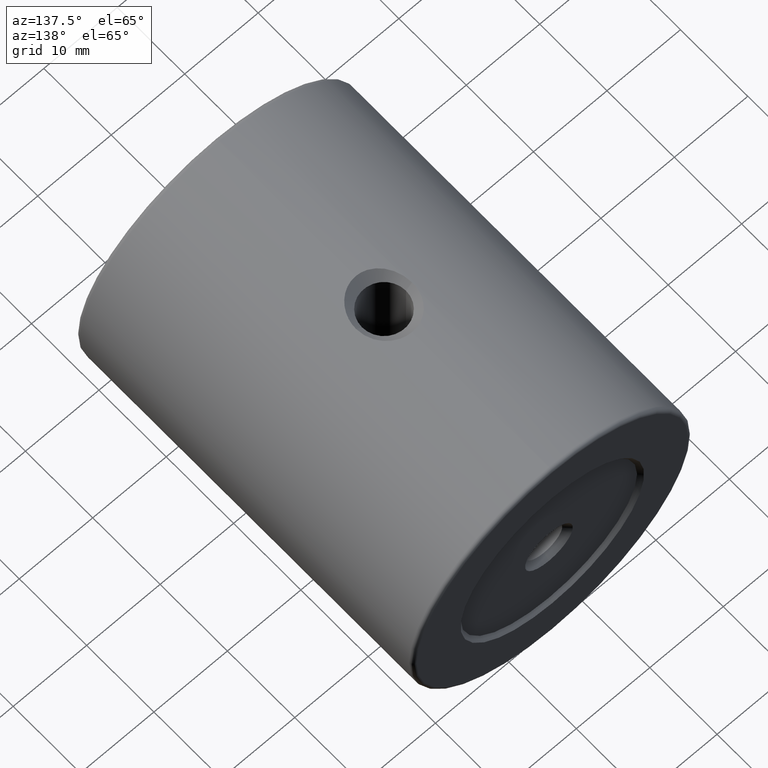
[diagram: clean part render]
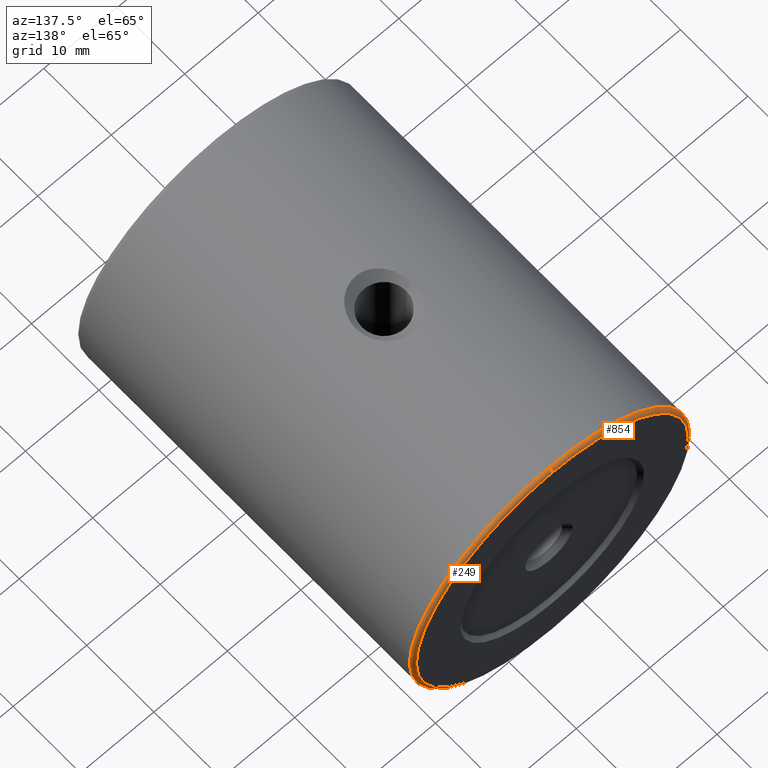
[diagram: same view with one multi-face feature highlighted, each face labeled with its STEP entity id]
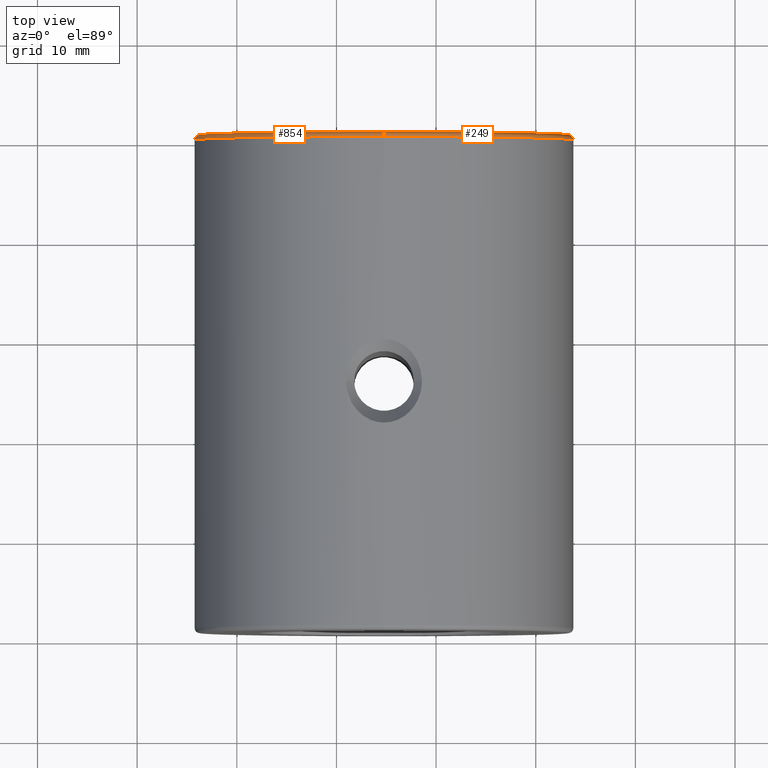
[diagram: same view with one multi-face feature highlighted, each face labeled with its STEP entity id]
A machine part, auxiliary view. The highlighted faces form ONE feature: a constant-radius fillet chain: 2 tangent blend faces with common blend radius 0.5 mm. The faces share edges in the B-rep.
A second angle (top view) of the same feature is appended — it is thin or edge-on in the first view.
Their STEP definitions:
[1] entity #854 (Torus):
#27 = AXIS2_PLACEMENT_3D ( 'NONE', #666, #281, #356 ) ;
#43 = CIRCLE ( 'NONE', #27, 0.5000000000000004441 ) ;
#50 = CARTESIAN_POINT ( 'NONE',  ( -85.22679983354142053, 20.73866000832571643, 381.5000000000000000 ) ) ;
#55 = FACE_OUTER_BOUND ( 'NONE', #678, .T. ) ;
#70 = CARTESIAN_POINT ( 'NONE',  ( -85.22679983354142053, 20.23866000832571643, 400.0000000000000000 ) ) ;
#87 = CARTESIAN_POINT ( 'NONE',  ( -85.22679983354142053, 20.23866000832571643, 381.0000000000000000 ) ) ;
#161 = VERTEX_POINT ( 'NONE', #50 ) ;
#172 = EDGE_CURVE ( 'NONE', #292, #513, #43, .T. ) ;
#215 = ORIENTED_EDGE ( 'NONE', *, *, #903, .F. ) ;
#256 = DIRECTION ( 'NONE',  ( 0.0000000000000000000, 0.0000000000000000000, 1.000000000000000000 ) ) ;
#262 = DIRECTION ( 'NONE',  ( 1.000000000000000000, -0.0000000000000000000, 1.224646799147353207E-16 ) ) ;
#267 = DIRECTION ( 'NONE',  ( 0.0000000000000000000, 0.0000000000000000000, -1.000000000000000000 ) ) ;
#272 = ORIENTED_EDGE ( 'NONE', *, *, #172, .T. ) ;
#281 = DIRECTION ( 'NONE',  ( -1.000000000000000000, 0.0000000000000000000, 0.0000000000000000000 ) ) ;
#292 = VERTEX_POINT ( 'NONE', #618 ) ;
#293 = AXIS2_PLACEMENT_3D ( 'NONE', #567, #425, #256 ) ;
#294 = AXIS2_PLACEMENT_3D ( 'NONE', #70, #643, #620 ) ;
#311 = ORIENTED_EDGE ( 'NONE', *, *, #701, .F. ) ;
#356 = DIRECTION ( 'NONE',  ( 0.0000000000000000000, 0.0000000000000000000, 1.000000000000000000 ) ) ;
#365 = CARTESIAN_POINT ( 'NONE',  ( -85.22679983354142053, 20.23866000832571643, 400.0000000000000000 ) ) ;
#425 = DIRECTION ( 'NONE',  ( 0.0000000000000000000, 1.000000000000000000, 0.0000000000000000000 ) ) ;
#513 = VERTEX_POINT ( 'NONE', #939 ) ;
#567 = CARTESIAN_POINT ( 'NONE',  ( -85.22679983354142053, 20.73866000832571643, 400.0000000000000000 ) ) ;
#578 = VERTEX_POINT ( 'NONE', #87 ) ;
#590 = TOROIDAL_SURFACE ( 'NONE', #611, 18.50000000000000000, 0.5000000000000000000 ) ;
#609 = CIRCLE ( 'NONE', #739, 0.5000000000000004441 ) ;
#611 = AXIS2_PLACEMENT_3D ( 'NONE', #365, #679, #780 ) ;
#618 = CARTESIAN_POINT ( 'NONE',  ( -85.22679983354142053, 20.23866000832571643, 419.0000000000000568 ) ) ;
#620 = DIRECTION ( 'NONE',  ( 0.0000000000000000000, 0.0000000000000000000, 1.000000000000000000 ) ) ;
#643 = DIRECTION ( 'NONE',  ( -0.0000000000000000000, -1.000000000000000000, -0.0000000000000000000 ) ) ;
#666 = CARTESIAN_POINT ( 'NONE',  ( -85.22679983354142053, 20.23866000832571643, 418.5000000000000568 ) ) ;
#669 = CARTESIAN_POINT ( 'NONE',  ( -85.22679983354142053, 20.23866000832571643, 381.5000000000000000 ) ) ;
#672 = EDGE_CURVE ( 'NONE', #578, #161, #609, .T. ) ;
#678 = EDGE_LOOP ( 'NONE', ( #732, #215, #272, #311 ) ) ;
#679 = DIRECTION ( 'NONE',  ( 0.0000000000000000000, 1.000000000000000000, 0.0000000000000000000 ) ) ;
#701 = EDGE_CURVE ( 'NONE', #161, #513, #839, .T. ) ;
#732 = ORIENTED_EDGE ( 'NONE', *, *, #672, .F. ) ;
#739 = AXIS2_PLACEMENT_3D ( 'NONE', #669, #262, #267 ) ;
#740 = CIRCLE ( 'NONE', #294, 19.00000000000001776 ) ;
#780 = DIRECTION ( 'NONE',  ( 0.0000000000000000000, 0.0000000000000000000, 1.000000000000000000 ) ) ;
#839 = CIRCLE ( 'NONE', #293, 18.50000000000001776 ) ;
#854 = ADVANCED_FACE ( 'NONE', ( #55 ), #590, .T. ) ;
#903 = EDGE_CURVE ( 'NONE', #292, #578, #740, .T. ) ;
#939 = CARTESIAN_POINT ( 'NONE',  ( -85.22679983354142053, 20.73866000832571643, 418.5000000000000568 ) ) ;
[2] entity #249 (Torus):
#27 = AXIS2_PLACEMENT_3D ( 'NONE', #666, #281, #356 ) ;
#29 = CIRCLE ( 'NONE', #156, 18.50000000000001776 ) ;
#43 = CIRCLE ( 'NONE', #27, 0.5000000000000004441 ) ;
#47 = DIRECTION ( 'NONE',  ( 0.0000000000000000000, 1.000000000000000000, 0.0000000000000000000 ) ) ;
#50 = CARTESIAN_POINT ( 'NONE',  ( -85.22679983354142053, 20.73866000832571643, 381.5000000000000000 ) ) ;
#87 = CARTESIAN_POINT ( 'NONE',  ( -85.22679983354142053, 20.23866000832571643, 381.0000000000000000 ) ) ;
#110 = EDGE_LOOP ( 'NONE', ( #947, #244, #252, #648 ) ) ;
#113 = FACE_OUTER_BOUND ( 'NONE', #110, .T. ) ;
#156 = AXIS2_PLACEMENT_3D ( 'NONE', #494, #501, #958 ) ;
#161 = VERTEX_POINT ( 'NONE', #50 ) ;
#172 = EDGE_CURVE ( 'NONE', #292, #513, #43, .T. ) ;
#244 = ORIENTED_EDGE ( 'NONE', *, *, #672, .T. ) ;
#249 = ADVANCED_FACE ( 'NONE', ( #113 ), #308, .T. ) ;
#252 = ORIENTED_EDGE ( 'NONE', *, *, #653, .F. ) ;
#262 = DIRECTION ( 'NONE',  ( 1.000000000000000000, -0.0000000000000000000, 1.224646799147353207E-16 ) ) ;
#267 = DIRECTION ( 'NONE',  ( 0.0000000000000000000, 0.0000000000000000000, -1.000000000000000000 ) ) ;
#281 = DIRECTION ( 'NONE',  ( -1.000000000000000000, 0.0000000000000000000, 0.0000000000000000000 ) ) ;
#292 = VERTEX_POINT ( 'NONE', #618 ) ;
#308 = TOROIDAL_SURFACE ( 'NONE', #883, 18.50000000000000000, 0.5000000000000000000 ) ;
#356 = DIRECTION ( 'NONE',  ( 0.0000000000000000000, 0.0000000000000000000, 1.000000000000000000 ) ) ;
#367 = DIRECTION ( 'NONE',  ( 0.0000000000000000000, 0.0000000000000000000, 1.000000000000000000 ) ) ;
#474 = CIRCLE ( 'NONE', #709, 19.00000000000001776 ) ;
#494 = CARTESIAN_POINT ( 'NONE',  ( -85.22679983354142053, 20.73866000832571643, 400.0000000000000000 ) ) ;
#501 = DIRECTION ( 'NONE',  ( 0.0000000000000000000, 1.000000000000000000, 0.0000000000000000000 ) ) ;
#513 = VERTEX_POINT ( 'NONE', #939 ) ;
#578 = VERTEX_POINT ( 'NONE', #87 ) ;
#581 = CARTESIAN_POINT ( 'NONE',  ( -85.22679983354142053, 20.23866000832571643, 400.0000000000000000 ) ) ;
#609 = CIRCLE ( 'NONE', #739, 0.5000000000000004441 ) ;
#618 = CARTESIAN_POINT ( 'NONE',  ( -85.22679983354142053, 20.23866000832571643, 419.0000000000000568 ) ) ;
#648 = ORIENTED_EDGE ( 'NONE', *, *, #172, .F. ) ;
#653 = EDGE_CURVE ( 'NONE', #513, #161, #29, .T. ) ;
#666 = CARTESIAN_POINT ( 'NONE',  ( -85.22679983354142053, 20.23866000832571643, 418.5000000000000568 ) ) ;
#668 = EDGE_CURVE ( 'NONE', #578, #292, #474, .T. ) ;
#669 = CARTESIAN_POINT ( 'NONE',  ( -85.22679983354142053, 20.23866000832571643, 381.5000000000000000 ) ) ;
#672 = EDGE_CURVE ( 'NONE', #578, #161, #609, .T. ) ;
#709 = AXIS2_PLACEMENT_3D ( 'NONE', #811, #726, #823 ) ;
#726 = DIRECTION ( 'NONE',  ( -0.0000000000000000000, -1.000000000000000000, -0.0000000000000000000 ) ) ;
#739 = AXIS2_PLACEMENT_3D ( 'NONE', #669, #262, #267 ) ;
#811 = CARTESIAN_POINT ( 'NONE',  ( -85.22679983354142053, 20.23866000832571643, 400.0000000000000000 ) ) ;
#823 = DIRECTION ( 'NONE',  ( 0.0000000000000000000, 0.0000000000000000000, 1.000000000000000000 ) ) ;
#883 = AXIS2_PLACEMENT_3D ( 'NONE', #581, #47, #367 ) ;
#939 = CARTESIAN_POINT ( 'NONE',  ( -85.22679983354142053, 20.73866000832571643, 418.5000000000000568 ) ) ;
#947 = ORIENTED_EDGE ( 'NONE', *, *, #668, .F. ) ;
#958 = DIRECTION ( 'NONE',  ( 0.0000000000000000000, 0.0000000000000000000, 1.000000000000000000 ) ) ;